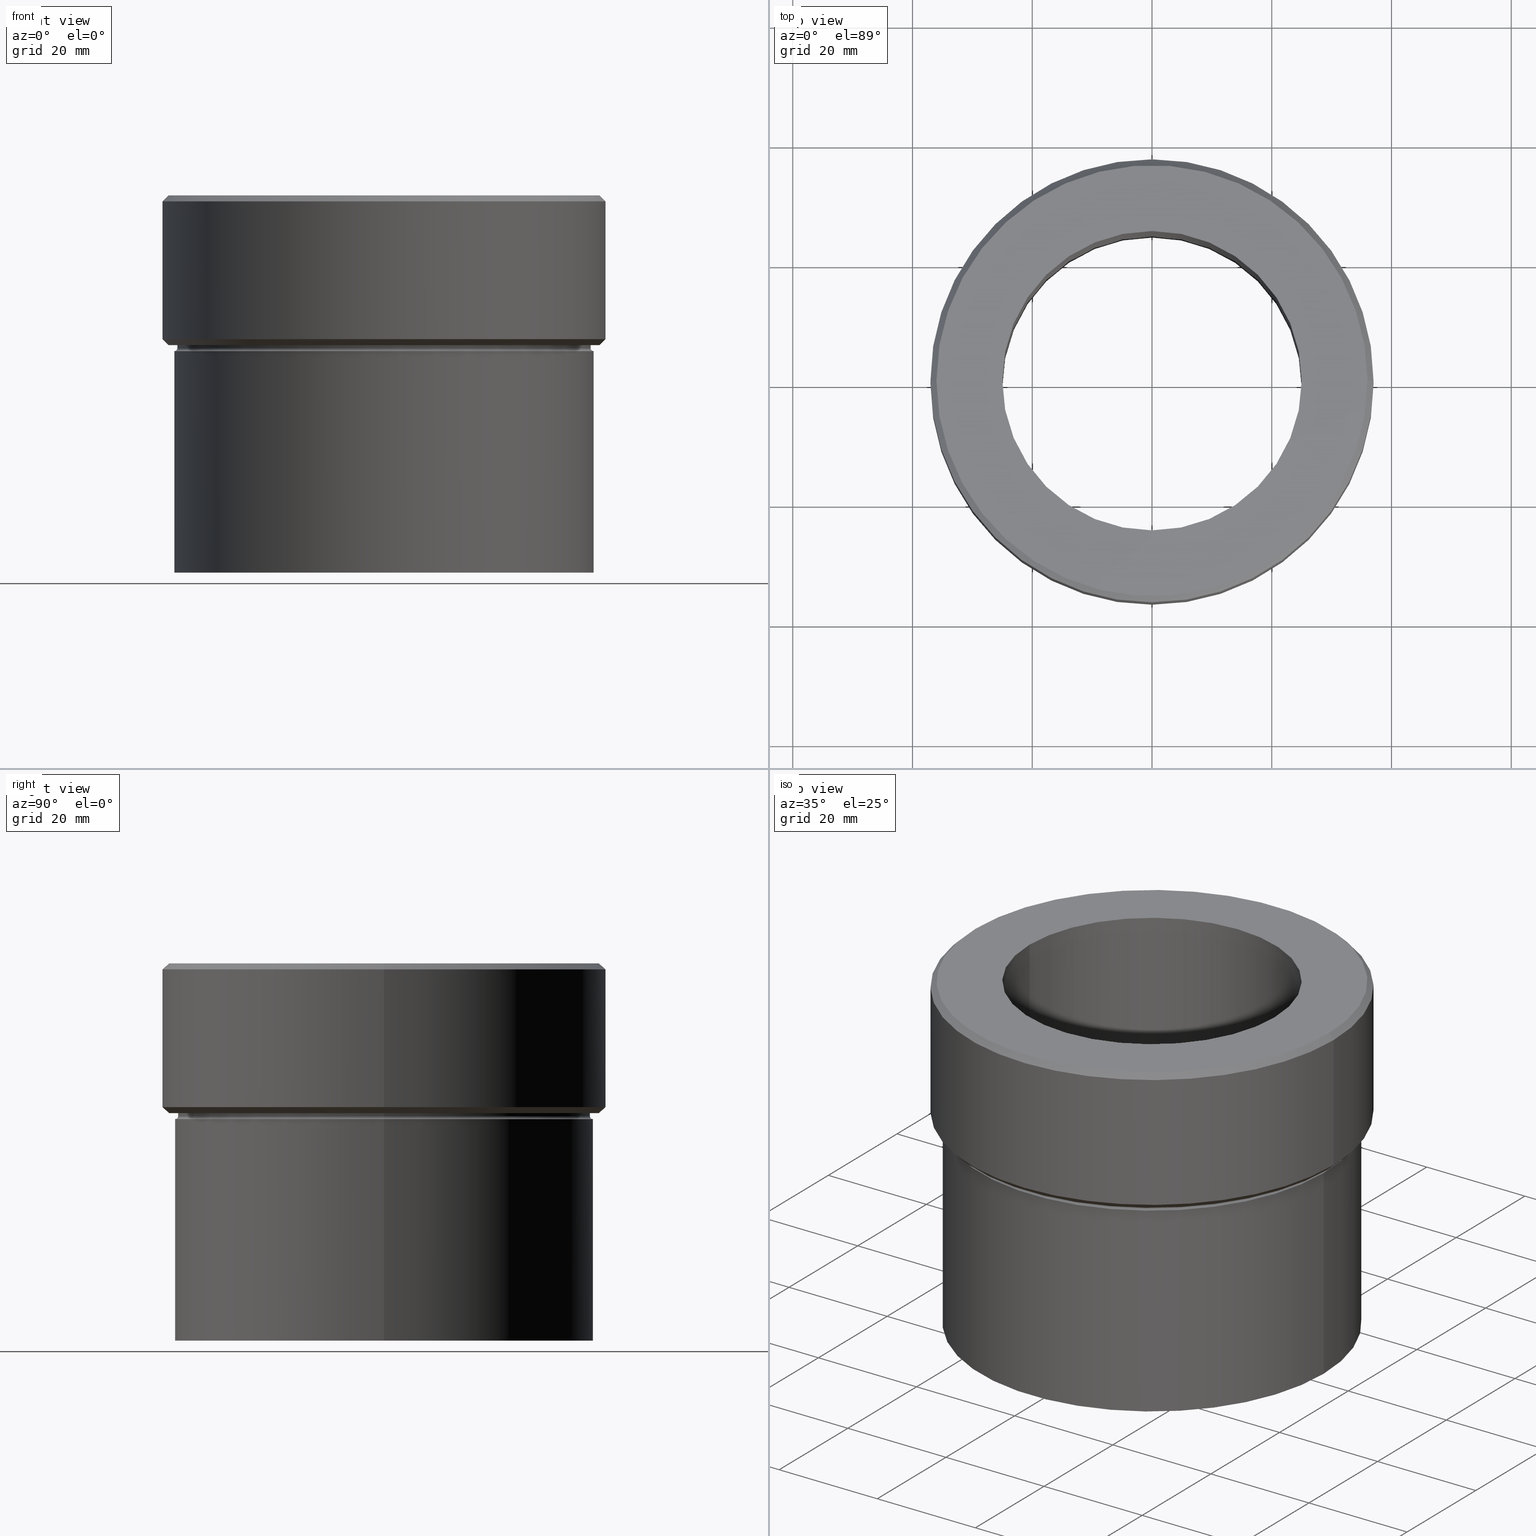
[diagram: canonical four-view strip — front | top / right | iso, engineering-drawing reading convention]
A machine part, canonical four-view strip (front | top / right | iso — engineering-drawing reading convention). The complete STEP part file that produces these views, byte-faithful:
ISO-10303-21;
HEADER;
FILE_DESCRIPTION (( 'STEP AP203' ),
    '1' );
FILE_NAME ('b271.STEP',
    '2024-01-08T12:24:02',
    ( '' ),
    ( '' ),
    'SwSTEP 2.0',
    'SolidWorks 2019',
    '' );
FILE_SCHEMA (( 'CONFIG_CONTROL_DESIGN' ));
ENDSEC;

DATA;
#1 = FACE_OUTER_BOUND ( 'NONE', #233, .T. ) ;
#2 = TOROIDAL_SURFACE ( 'NONE', #307, 35.00000000000000000, 0.5000000000000000000 ) ;
#3 = LOCAL_TIME ( 13, 24, 2.000000000000000000, #10 ) ;
#4 = APPLICATION_PROTOCOL_DEFINITION ( 'international standard', 'config_control_design', 1994, #473 ) ;
#5 = DIRECTION ( 'NONE',  ( -0.000000000000000000, -0.000000000000000000, 1.000000000000000000 ) ) ;
#6 = CARTESIAN_POINT ( 'NONE',  ( 0.000000000000000000, 0.000000000000000000, 0.000000000000000000 ) ) ;
#7 = EDGE_CURVE ( 'NONE', #230, #194, #29, .T. ) ;
#8 = FACE_OUTER_BOUND ( 'NONE', #352, .T. ) ;
#9 = DIRECTION ( 'NONE',  ( 1.000000000000000000, 0.000000000000000000, 0.000000000000000000 ) ) ;
#10 = COORDINATED_UNIVERSAL_TIME_OFFSET ( 1, 0, .AHEAD. ) ;
#11 = AXIS2_PLACEMENT_3D ( 'NONE', #298, #90, #24 ) ;
#12 = VERTEX_POINT ( 'NONE', #430 ) ;
#13 = CARTESIAN_POINT ( 'NONE',  ( 0.000000000000000000, 0.000000000000000000, -25.00000000000000000 ) ) ;
#14 = ORIENTED_EDGE ( 'NONE', *, *, #84, .F. ) ;
#15 = ADVANCED_FACE ( 'NONE', ( #345 ), #253, .T. ) ;
#16 = ORIENTED_EDGE ( 'NONE', *, *, #117, .T. ) ;
#17 = ORIENTED_EDGE ( 'NONE', *, *, #414, .T. ) ;
#18 = DIRECTION ( 'NONE',  ( 0.7071067811865500152, 0.000000000000000000, 0.7071067811865451302 ) ) ;
#19 = AXIS2_PLACEMENT_3D ( 'NONE', #485, #186, #188 ) ;
#20 = CARTESIAN_POINT ( 'NONE',  ( 34.50000000000000000, 0.000000000000000000, -25.00000000000000000 ) ) ;
#21 = VERTEX_POINT ( 'NONE', #20 ) ;
#22 = CARTESIAN_POINT ( 'NONE',  ( -35.99999999999996447, 4.469960816887836852E-15, -25.00000000000000000 ) ) ;
#23 = PERSON_AND_ORGANIZATION ( #122, #266 ) ;
#24 = DIRECTION ( 'NONE',  ( 1.000000000000000000, 0.000000000000000000, 0.000000000000000000 ) ) ;
#25 = LINE ( 'NONE', #344, #149 ) ;
#26 = CC_DESIGN_PERSON_AND_ORGANIZATION_ASSIGNMENT ( #23, #511, ( #40 ) ) ;
#27 = DIRECTION ( 'NONE',  ( 1.000000000000000000, 0.000000000000000000, 0.000000000000000000 ) ) ;
#28 = ORIENTED_EDGE ( 'NONE', *, *, #318, .T. ) ;
#29 = CIRCLE ( 'NONE', #328, 25.00000000000000000 ) ;
#30 = AXIS2_PLACEMENT_3D ( 'NONE', #474, #237, #200 ) ;
#31 = ORIENTED_EDGE ( 'NONE', *, *, #261, .F. ) ;
#32 = ADVANCED_FACE ( 'NONE', ( #60, #303 ), #179, .T. ) ;
#33 = CARTESIAN_POINT ( 'NONE',  ( -37.00000000000000000, 4.531193156845206793E-15, -0.9999999999999870104 ) ) ;
#34 = ORIENTED_EDGE ( 'NONE', *, *, #398, .F. ) ;
#35 = COORDINATED_UNIVERSAL_TIME_OFFSET ( 1, 0, .AHEAD. ) ;
#36 = ORIENTED_EDGE ( 'NONE', *, *, #455, .F. ) ;
#37 = CARTESIAN_POINT ( 'NONE',  ( 35.00000000000000000, 0.000000000000000000, -26.00000000000000000 ) ) ;
#38 = AXIS2_PLACEMENT_3D ( 'NONE', #58, #355, #276 ) ;
#39 = ORIENTED_EDGE ( 'NONE', *, *, #195, .T. ) ;
#40 = PRODUCT_DEFINITION_FORMATION_WITH_SPECIFIED_SOURCE ( 'LIBOVOLN�', '', #202, .NOT_KNOWN. ) ;
#41 = DIRECTION ( 'NONE',  ( -0.000000000000000000, -0.000000000000000000, 1.000000000000000000 ) ) ;
#42 = CC_DESIGN_DATE_AND_TIME_ASSIGNMENT ( #316, #521, ( #178 ) ) ;
#43 = ORIENTED_EDGE ( 'NONE', *, *, #56, .T. ) ;
#44 = CYLINDRICAL_SURFACE ( 'NONE', #347, 37.00000000000000000 ) ;
#45 = VERTEX_POINT ( 'NONE', #502 ) ;
#46 = DIRECTION ( 'NONE',  ( 1.000000000000000000, 0.000000000000000000, 0.000000000000000000 ) ) ;
#47 = CONICAL_SURFACE ( 'NONE', #287, 36.00000000000002132, 0.7853981633974447263 ) ;
#48 = CARTESIAN_POINT ( 'NONE',  ( 0.000000000000000000, 0.000000000000000000, 0.000000000000000000 ) ) ;
#49 = AXIS2_PLACEMENT_3D ( 'NONE', #59, #255, #219 ) ;
#50 = ADVANCED_FACE ( 'NONE', ( #134 ), #139, .T. ) ;
#51 = LINE ( 'NONE', #221, #160 ) ;
#52 = DIRECTION ( 'NONE',  ( -0.000000000000000000, -0.000000000000000000, 1.000000000000000000 ) ) ;
#53 = DIRECTION ( 'NONE',  ( 1.000000000000000000, 0.000000000000000000, 0.000000000000000000 ) ) ;
#54 = DIRECTION ( 'NONE',  ( 1.000000000000000000, 0.000000000000000000, 0.000000000000000000 ) ) ;
#55 = CIRCLE ( 'NONE', #159, 34.50000000000000000 ) ;
#56 = EDGE_CURVE ( 'NONE', #257, #45, #304, .T. ) ;
#57 = LOCAL_TIME ( 13, 24, 2.000000000000000000, #438 ) ;
#58 = CARTESIAN_POINT ( 'NONE',  ( 0.000000000000000000, 0.000000000000000000, 0.000000000000000000 ) ) ;
#59 = CARTESIAN_POINT ( 'NONE',  ( 0.000000000000000000, 0.000000000000000000, -25.00000000000000000 ) ) ;
#60 = FACE_BOUND ( 'NONE', #499, .T. ) ;
#61 = CARTESIAN_POINT ( 'NONE',  ( 37.00000000000000000, 0.000000000000000000, -23.99999999999997158 ) ) ;
#62 = DIRECTION ( 'NONE',  ( 1.000000000000000000, 0.000000000000000000, 0.000000000000000000 ) ) ;
#63 = VECTOR ( 'NONE', #41, 1000.000000000000000 ) ;
#64 = EDGE_CURVE ( 'NONE', #145, #366, #55, .T. ) ;
#65 = ORIENTED_EDGE ( 'NONE', *, *, #261, .T. ) ;
#66 = CARTESIAN_POINT ( 'NONE',  ( 0.000000000000000000, 37.00000000000000000, -25.00000000000000000 ) ) ;
#67 = VERTEX_POINT ( 'NONE', #22 ) ;
#68 = EDGE_CURVE ( 'NONE', #366, #386, #282, .T. ) ;
#69 = AXIS2_PLACEMENT_3D ( 'NONE', #513, #146, #322 ) ;
#70 = AXIS2_PLACEMENT_3D ( 'NONE', #309, #174, #343 ) ;
#71 = ORIENTED_EDGE ( 'NONE', *, *, #243, .T. ) ;
#72 = DIRECTION ( 'NONE',  ( -1.000000000000000000, 0.000000000000000000, 0.000000000000000000 ) ) ;
#73 = EDGE_LOOP ( 'NONE', ( #378, #262, #190, #93 ) ) ;
#74 = DIRECTION ( 'NONE',  ( -0.000000000000000000, -0.000000000000000000, 1.000000000000000000 ) ) ;
#75 = ORIENTED_EDGE ( 'NONE', *, *, #507, .T. ) ;
#76 = ORIENTED_EDGE ( 'NONE', *, *, #143, .T. ) ;
#77 = DIRECTION ( 'NONE',  ( 1.000000000000000000, 0.000000000000000000, 0.000000000000000000 ) ) ;
#78 = PERSON_AND_ORGANIZATION ( #122, #266 ) ;
#79 = VECTOR ( 'NONE', #150, 1000.000000000000000 ) ;
#80 = VERTEX_POINT ( 'NONE', #409 ) ;
#81 = EDGE_CURVE ( 'NONE', #366, #393, #170, .T. ) ;
#82 = FACE_OUTER_BOUND ( 'NONE', #156, .T. ) ;
#83 = DIRECTION ( 'NONE',  ( -0.000000000000000000, -0.000000000000000000, 1.000000000000000000 ) ) ;
#84 = EDGE_CURVE ( 'NONE', #357, #12, #128, .T. ) ;
#85 = DIRECTION ( 'NONE',  ( 1.000000000000000000, 0.000000000000000000, 0.000000000000000000 ) ) ;
#86 = CARTESIAN_POINT ( 'NONE',  ( -36.00000000000002132, 0.000000000000000000, 0.000000000000000000 ) ) ;
#87 = PERSON_AND_ORGANIZATION ( #122, #266 ) ;
#88 = CARTESIAN_POINT ( 'NONE',  ( 0.000000000000000000, 0.000000000000000000, 0.000000000000000000 ) ) ;
#89 = PERSON_AND_ORGANIZATION_ROLE ( 'creator' ) ;
#90 = DIRECTION ( 'NONE',  ( -0.000000000000000000, -0.000000000000000000, 1.000000000000000000 ) ) ;
#91 = DIRECTION ( 'NONE',  ( -0.000000000000000000, -0.000000000000000000, 1.000000000000000000 ) ) ;
#92 = ADVANCED_FACE ( 'NONE', ( #271 ), #176, .T. ) ;
#93 = ORIENTED_EDGE ( 'NONE', *, *, #284, .F. ) ;
#94 = AXIS2_PLACEMENT_3D ( 'NONE', #220, #338, #185 ) ;
#95 = AXIS2_PLACEMENT_3D ( 'NONE', #48, #291, #208 ) ;
#96 = CC_DESIGN_APPROVAL ( #164, ( #40 ) ) ;
#97 = CARTESIAN_POINT ( 'NONE',  ( 37.00000000000000000, 0.000000000000000000, -23.99999999999997158 ) ) ;
#98 = CALENDAR_DATE ( 2024, 8, 1 ) ;
#99 = ORIENTED_EDGE ( 'NONE', *, *, #277, .F. ) ;
#100 = EDGE_CURVE ( 'NONE', #402, #236, #372, .T. ) ;
#101 = APPLICATION_CONTEXT ( 'configuration controlled 3d designs of mechanical parts and assemblies' ) ;
#102 = ORIENTED_EDGE ( 'NONE', *, *, #84, .T. ) ;
#103 = AXIS2_PLACEMENT_3D ( 'NONE', #148, #444, #319 ) ;
#104 = PERSON_AND_ORGANIZATION_ROLE ( 'design_supplier' ) ;
#105 = CARTESIAN_POINT ( 'NONE',  ( 0.000000000000000000, 0.000000000000000000, -63.00000000000000000 ) ) ;
#106 = ORIENTED_EDGE ( 'NONE', *, *, #183, .T. ) ;
#107 = EDGE_CURVE ( 'NONE', #136, #393, #314, .T. ) ;
#108 = ORIENTED_EDGE ( 'NONE', *, *, #143, .F. ) ;
#109 = AXIS2_PLACEMENT_3D ( 'NONE', #119, #405, #391 ) ;
#110 = ORIENTED_EDGE ( 'NONE', *, *, #195, .F. ) ;
#111 = ORIENTED_EDGE ( 'NONE', *, *, #500, .F. ) ;
#112 =( NAMED_UNIT ( * ) SI_UNIT ( $, .STERADIAN. ) SOLID_ANGLE_UNIT ( ) );
#113 = ORIENTED_EDGE ( 'NONE', *, *, #189, .F. ) ;
#114 = PLANE ( 'NONE',  #260 ) ;
#115 = CARTESIAN_POINT ( 'NONE',  ( -34.50000000000000000, 4.225031457058368922E-15, -25.00000000000000000 ) ) ;
#116 = MECHANICAL_CONTEXT ( 'NONE', #473, 'mechanical' ) ;
#117 = EDGE_CURVE ( 'NONE', #21, #386, #481, .T. ) ;
#118 = EDGE_LOOP ( 'NONE', ( #120, #65, #529, #111 ) ) ;
#119 = CARTESIAN_POINT ( 'NONE',  ( 0.000000000000000000, 0.000000000000000000, -26.00000000000000000 ) ) ;
#120 = ORIENTED_EDGE ( 'NONE', *, *, #100, .T. ) ;
#121 = AXIS2_PLACEMENT_3D ( 'NONE', #448, #203, #77 ) ;
#122 = PERSON ( 'NEUR�EN�', 'NEUR�EN�', 'NEUR�EN�', ('NEUR�EN�'), ('NEUR�EN�'), ('NEUR�EN�') ) ;
#123 = DIRECTION ( 'NONE',  ( -1.000000000000000000, 0.000000000000000000, 0.000000000000000000 ) ) ;
#124 = CYLINDRICAL_SURFACE ( 'NONE', #497, 25.00000000000000000 ) ;
#125 = EDGE_CURVE ( 'NONE', #439, #12, #196, .T. ) ;
#126 = EDGE_LOOP ( 'NONE', ( #31, #76, #193, #390 ) ) ;
#127 = FACE_OUTER_BOUND ( 'NONE', #126, .T. ) ;
#128 = CIRCLE ( 'NONE', #19, 37.00000000000000000 ) ;
#129 = DIRECTION ( 'NONE',  ( -1.000000000000000000, 0.000000000000000000, 0.000000000000000000 ) ) ;
#130 = VECTOR ( 'NONE', #258, 1000.000000000000000 ) ;
#131 = DESIGN_CONTEXT ( 'detailed design', #101, 'design' ) ;
#132 = ADVANCED_FACE ( 'NONE', ( #82, #370 ), #114, .T. ) ;
#133 = DIRECTION ( 'NONE',  ( -0.000000000000000000, -0.000000000000000000, 1.000000000000000000 ) ) ;
#134 = FACE_OUTER_BOUND ( 'NONE', #264, .T. ) ;
#135 = CARTESIAN_POINT ( 'NONE',  ( 36.00000000000002132, 4.408728476930474011E-15, 0.000000000000000000 ) ) ;
#136 = VERTEX_POINT ( 'NONE', #37 ) ;
#137 = DIRECTION ( 'NONE',  ( 0.000000000000000000, 0.000000000000000000, -1.000000000000000000 ) ) ;
#139 = CONICAL_SURFACE ( 'NONE', #306, 36.00000000000002132, 0.7853981633974447263 ) ;
#138 = DIRECTION ( 'NONE',  ( -0.000000000000000000, -0.000000000000000000, 1.000000000000000000 ) ) ;
#140 = VECTOR ( 'NONE', #91, 1000.000000000000000 ) ;
#141 = CC_DESIGN_APPROVAL ( #483, ( #431 ) ) ;
#142 = DIRECTION ( 'NONE',  ( -0.7071067811865451302, 0.000000000000000000, -0.7071067811865500152 ) ) ;
#143 = EDGE_CURVE ( 'NONE', #236, #402, #354, .T. ) ;
#144 = CARTESIAN_POINT ( 'NONE',  ( 0.000000000000000000, 0.000000000000000000, 0.000000000000000000 ) ) ;
#145 = VERTEX_POINT ( 'NONE', #524 ) ;
#146 = DIRECTION ( 'NONE',  ( -0.000000000000000000, -0.000000000000000000, 1.000000000000000000 ) ) ;
#147 = ORIENTED_EDGE ( 'NONE', *, *, #446, .T. ) ;
#148 = CARTESIAN_POINT ( 'NONE',  ( 0.000000000000000000, 0.000000000000000000, -25.00000000000000000 ) ) ;
#149 = VECTOR ( 'NONE', #506, 1000.000000000000114 ) ;
#150 = DIRECTION ( 'NONE',  ( -0.000000000000000000, -0.000000000000000000, 1.000000000000000000 ) ) ;
#151 = VECTOR ( 'NONE', #142, 1000.000000000000114 ) ;
#152 = ADVANCED_FACE ( 'NONE', ( #325 ), #44, .T. ) ;
#153 = EDGE_LOOP ( 'NONE', ( #280, #324, #217, #509 ) ) ;
#154 = ORIENTED_EDGE ( 'NONE', *, *, #204, .T. ) ;
#155 = ORIENTED_EDGE ( 'NONE', *, *, #125, .T. ) ;
#156 = EDGE_LOOP ( 'NONE', ( #28, #226 ) ) ;
#157 = ORIENTED_EDGE ( 'NONE', *, *, #68, .T. ) ;
#158 = PERSON_AND_ORGANIZATION ( #122, #266 ) ;
#159 = AXIS2_PLACEMENT_3D ( 'NONE', #452, #413, #228 ) ;
#160 = VECTOR ( 'NONE', #379, 1000.000000000000000 ) ;
#161 = EDGE_LOOP ( 'NONE', ( #281, #106, #43, #113 ) ) ;
#162 = FACE_OUTER_BOUND ( 'NONE', #369, .T. ) ;
#163 = DIRECTION ( 'NONE',  ( -1.000000000000000000, 0.000000000000000000, -0.000000000000000000 ) ) ;
#164 = APPROVAL ( #297, 'NEUR�EN�' ) ;
#165 = ORIENTED_EDGE ( 'NONE', *, *, #81, .F. ) ;
#166 = LINE ( 'NONE', #488, #140 ) ;
#167 = APPROVAL_DATE_TIME ( #528, #483 ) ;
#168 = DIRECTION ( 'NONE',  ( 1.000000000000000000, 0.000000000000000000, 0.000000000000000000 ) ) ;
#169 =( LENGTH_UNIT ( ) NAMED_UNIT ( * ) SI_UNIT ( .MILLI., .METRE. ) );
#170 = CIRCLE ( 'NONE', #30, 0.5000000000000004441 ) ;
#171 = ADVANCED_FACE ( 'NONE', ( #162 ), #364, .F. ) ;
#172 = VECTOR ( 'NONE', #211, 1000.000000000000114 ) ;
#173 = FACE_OUTER_BOUND ( 'NONE', #153, .T. ) ;
#174 = DIRECTION ( 'NONE',  ( 0.000000000000000000, 0.000000000000000000, -1.000000000000000000 ) ) ;
#175 = DIRECTION ( 'NONE',  ( -0.000000000000000000, -0.000000000000000000, 1.000000000000000000 ) ) ;
#176 = CONICAL_SURFACE ( 'NONE', #522, 37.00000000000000000, 0.7853981633974517207 ) ;
#177 = CARTESIAN_POINT ( 'NONE',  ( 0.000000000000000000, 0.000000000000000000, 0.000000000000000000 ) ) ;
#178 = SECURITY_CLASSIFICATION ( '', '', #268 ) ;
#179 = PLANE ( 'NONE',  #94 ) ;
#180 = CC_DESIGN_PERSON_AND_ORGANIZATION_ASSIGNMENT ( #395, #272, ( #178 ) ) ;
#181 = CARTESIAN_POINT ( 'NONE',  ( 0.000000000000000000, 0.000000000000000000, -63.00000000000000000 ) ) ;
#182 = LINE ( 'NONE', #346, #151 ) ;
#183 = EDGE_CURVE ( 'NONE', #194, #257, #239, .T. ) ;
#184 = AXIS2_PLACEMENT_3D ( 'NONE', #310, #486, #163 ) ;
#185 = DIRECTION ( 'NONE',  ( 1.000000000000000000, 0.000000000000000000, 0.000000000000000000 ) ) ;
#186 = DIRECTION ( 'NONE',  ( 0.000000000000000000, 0.000000000000000000, -1.000000000000000000 ) ) ;
#187 = EDGE_LOOP ( 'NONE', ( #154, #342 ) ) ;
#188 = DIRECTION ( 'NONE',  ( 1.000000000000000000, 0.000000000000000000, 0.000000000000000000 ) ) ;
#189 = EDGE_CURVE ( 'NONE', #230, #45, #166, .T. ) ;
#190 = ORIENTED_EDGE ( 'NONE', *, *, #489, .T. ) ;
#191 = ORIENTED_EDGE ( 'NONE', *, *, #312, .F. ) ;
#192 = FACE_OUTER_BOUND ( 'NONE', #73, .T. ) ;
#193 = ORIENTED_EDGE ( 'NONE', *, *, #500, .T. ) ;
#194 = VERTEX_POINT ( 'NONE', #423 ) ;
#195 = EDGE_CURVE ( 'NONE', #80, #439, #424, .T. ) ;
#196 = LINE ( 'NONE', #289, #63 ) ;
#197 = DIRECTION ( 'NONE',  ( -0.000000000000000000, -0.000000000000000000, 1.000000000000000000 ) ) ;
#198 = CIRCLE ( 'NONE', #468, 36.00000000000002132 ) ;
#199 = VERTEX_POINT ( 'NONE', #86 ) ;
#200 = DIRECTION ( 'NONE',  ( -1.000000000000000000, 1.224646799147349509E-16, 0.000000000000000000 ) ) ;
#201 = ORIENTED_EDGE ( 'NONE', *, *, #477, .F. ) ;
#202 = PRODUCT ( 'b271', 'b271', '', ( #116 ) ) ;
#203 = DIRECTION ( 'NONE',  ( -0.000000000000000000, -0.000000000000000000, 1.000000000000000000 ) ) ;
#204 = EDGE_CURVE ( 'NONE', #199, #278, #198, .T. ) ;
#205 = CYLINDRICAL_SURFACE ( 'NONE', #387, 35.00000000000000000 ) ;
#206 = AXIS2_PLACEMENT_3D ( 'NONE', #177, #52, #212 ) ;
#207 = APPROVAL_PERSON_ORGANIZATION ( #158, #527, #209 ) ;
#208 = DIRECTION ( 'NONE',  ( 1.000000000000000000, 0.000000000000000000, 0.000000000000000000 ) ) ;
#209 = APPROVAL_ROLE ( '' ) ;
#210 = CARTESIAN_POINT ( 'NONE',  ( 0.000000000000000000, 0.000000000000000000, -80.00000000000000000 ) ) ;
#211 = DIRECTION ( 'NONE',  ( 0.7071067811865451302, 8.659560562354904508E-17, -0.7071067811865500152 ) ) ;
#212 = DIRECTION ( 'NONE',  ( 1.000000000000000000, 0.000000000000000000, 0.000000000000000000 ) ) ;
#213 = CC_DESIGN_PERSON_AND_ORGANIZATION_ASSIGNMENT ( #283, #450, ( #202 ) ) ;
#214 = CIRCLE ( 'NONE', #38, 36.00000000000002132 ) ;
#215 = FACE_OUTER_BOUND ( 'NONE', #161, .T. ) ;
#216 = CIRCLE ( 'NONE', #514, 0.5000000000000004441 ) ;
#217 = ORIENTED_EDGE ( 'NONE', *, *, #389, .T. ) ;
#218 = ADVANCED_FACE ( 'NONE', ( #215 ), #244, .F. ) ;
#219 = DIRECTION ( 'NONE',  ( 1.000000000000000000, 0.000000000000000000, 0.000000000000000000 ) ) ;
#220 = CARTESIAN_POINT ( 'NONE',  ( 0.000000000000000000, 0.000000000000000000, 0.000000000000000000 ) ) ;
#221 = CARTESIAN_POINT ( 'NONE',  ( 35.00000000000000000, 0.000000000000000000, 0.000000000000000000 ) ) ;
#222 = ORIENTED_EDGE ( 'NONE', *, *, #302, .F. ) ;
#223 = CIRCLE ( 'NONE', #410, 34.50000000000000000 ) ;
#224 = VECTOR ( 'NONE', #18, 1000.000000000000114 ) ;
#225 = APPROVAL_DATE_TIME ( #348, #164 ) ;
#226 = ORIENTED_EDGE ( 'NONE', *, *, #398, .T. ) ;
#227 = ADVANCED_FACE ( 'NONE', ( #127 ), #205, .T. ) ;
#228 = DIRECTION ( 'NONE',  ( 1.000000000000000000, 0.000000000000000000, 0.000000000000000000 ) ) ;
#229 = CYLINDRICAL_SURFACE ( 'NONE', #400, 37.00000000000000000 ) ;
#230 = VERTEX_POINT ( 'NONE', #371 ) ;
#231 = CIRCLE ( 'NONE', #476, 37.00000000000000000 ) ;
#232 =( GEOMETRIC_REPRESENTATION_CONTEXT ( 3 ) GLOBAL_UNCERTAINTY_ASSIGNED_CONTEXT ( ( #418 ) ) GLOBAL_UNIT_ASSIGNED_CONTEXT ( ( #169, #330, #112 ) ) REPRESENTATION_CONTEXT ( 'NONE', 'WORKASPACE' ) );
#233 = EDGE_LOOP ( 'NONE', ( #317, #519, #466, #296 ) ) ;
#234 = FACE_OUTER_BOUND ( 'NONE', #504, .T. ) ;
#235 = ADVANCED_FACE ( 'NONE', ( #1 ), #124, .F. ) ;
#236 = VERTEX_POINT ( 'NONE', #456 ) ;
#237 = DIRECTION ( 'NONE',  ( 1.224646799147353207E-16, 1.000000000000000000, 0.000000000000000000 ) ) ;
#238 = ORIENTED_EDGE ( 'NONE', *, *, #125, .F. ) ;
#239 = LINE ( 'NONE', #367, #79 ) ;
#240 = VECTOR ( 'NONE', #394, 1000.000000000000000 ) ;
#241 = EDGE_LOOP ( 'NONE', ( #71, #273, #102, #238 ) ) ;
#242 = CARTESIAN_POINT ( 'NONE',  ( 0.000000000000000000, 0.000000000000000000, 0.000000000000000000 ) ) ;
#243 = EDGE_CURVE ( 'NONE', #439, #80, #441, .T. ) ;
#244 = CYLINDRICAL_SURFACE ( 'NONE', #329, 25.00000000000000000 ) ;
#245 = DIRECTION ( 'NONE',  ( -1.000000000000000000, 0.000000000000000000, 0.000000000000000000 ) ) ;
#246 = DATE_AND_TIME ( #300, #3 ) ;
#247 = AXIS2_PLACEMENT_3D ( 'NONE', #105, #74, #168 ) ;
#248 = CC_DESIGN_APPROVAL ( #527, ( #178 ) ) ;
#249 = FACE_OUTER_BOUND ( 'NONE', #396, .T. ) ;
#250 = LINE ( 'NONE', #135, #172 ) ;
#251 = ADVANCED_FACE ( 'NONE', ( #173 ), #415, .T. ) ;
#252 = CARTESIAN_POINT ( 'NONE',  ( 0.000000000000000000, 0.000000000000000000, -23.99999999999997158 ) ) ;
#253 = CYLINDRICAL_SURFACE ( 'NONE', #467, 35.00000000000000000 ) ;
#254 = CALENDAR_DATE ( 2024, 8, 1 ) ;
#255 = DIRECTION ( 'NONE',  ( -0.000000000000000000, -0.000000000000000000, 1.000000000000000000 ) ) ;
#256 = SHAPE_DEFINITION_REPRESENTATION ( #490, #420 ) ;
#257 = VERTEX_POINT ( 'NONE', #376 ) ;
#258 = DIRECTION ( 'NONE',  ( -0.000000000000000000, -0.000000000000000000, 1.000000000000000000 ) ) ;
#259 = CLOSED_SHELL ( 'NONE', ( #218, #171, #50, #520, #15, #269, #368, #32, #152, #132, #251, #227, #380, #92, #356, #375, #235 ) ) ;
#260 = AXIS2_PLACEMENT_3D ( 'NONE', #66, #267, #530 ) ;
#261 = EDGE_CURVE ( 'NONE', #236, #393, #494, .T. ) ;
#262 = ORIENTED_EDGE ( 'NONE', *, *, #204, .F. ) ;
#263 = EDGE_LOOP ( 'NONE', ( #525, #428, #285, #110 ) ) ;
#264 = EDGE_LOOP ( 'NONE', ( #191, #147, #14, #275 ) ) ;
#265 = VECTOR ( 'NONE', #458, 1000.000000000000000 ) ;
#266 = ORGANIZATION ( 'NEUR�EN�', 'NEUR�EN�', '' ) ;
#267 = DIRECTION ( 'NONE',  ( 0.000000000000000000, 0.000000000000000000, -1.000000000000000000 ) ) ;
#268 = SECURITY_CLASSIFICATION_LEVEL ( 'unclassified' ) ;
#269 = ADVANCED_FACE ( 'NONE', ( #249 ), #377, .T. ) ;
#270 = CARTESIAN_POINT ( 'NONE',  ( -34.50000000000000000, 4.225031457058368922E-15, -25.50000000000000000 ) ) ;
#271 = FACE_OUTER_BOUND ( 'NONE', #263, .T. ) ;
#272 = PERSON_AND_ORGANIZATION_ROLE ( 'classification_officer' ) ;
#273 = ORIENTED_EDGE ( 'NONE', *, *, #408, .T. ) ;
#274 = PLANE ( 'NONE',  #184 ) ;
#275 = ORIENTED_EDGE ( 'NONE', *, *, #489, .F. ) ;
#276 = DIRECTION ( 'NONE',  ( 1.000000000000000000, 0.000000000000000000, 0.000000000000000000 ) ) ;
#277 = EDGE_CURVE ( 'NONE', #45, #257, #416, .T. ) ;
#278 = VERTEX_POINT ( 'NONE', #335 ) ;
#279 = FACE_OUTER_BOUND ( 'NONE', #447, .T. ) ;
#280 = ORIENTED_EDGE ( 'NONE', *, *, #68, .F. ) ;
#281 = ORIENTED_EDGE ( 'NONE', *, *, #7, .T. ) ;
#282 = LINE ( 'NONE', #311, #240 ) ;
#283 = PERSON_AND_ORGANIZATION ( #122, #266 ) ;
#284 = EDGE_CURVE ( 'NONE', #12, #357, #231, .T. ) ;
#285 = ORIENTED_EDGE ( 'NONE', *, *, #477, .T. ) ;
#286 = DIRECTION ( 'NONE',  ( 1.000000000000000000, 0.000000000000000000, 0.000000000000000000 ) ) ;
#287 = AXIS2_PLACEMENT_3D ( 'NONE', #516, #518, #72 ) ;
#288 = LOCAL_TIME ( 13, 24, 2.000000000000000000, #35 ) ;
#289 = CARTESIAN_POINT ( 'NONE',  ( 37.00000000000000000, 0.000000000000000000, 0.000000000000000000 ) ) ;
#290 = DIRECTION ( 'NONE',  ( 1.000000000000000000, 0.000000000000000000, 0.000000000000000000 ) ) ;
#291 = DIRECTION ( 'NONE',  ( -0.000000000000000000, -0.000000000000000000, 1.000000000000000000 ) ) ;
#292 = EDGE_CURVE ( 'NONE', #67, #80, #25, .T. ) ;
#293 = DATE_AND_TIME ( #254, #498 ) ;
#294 = DIRECTION ( 'NONE',  ( 1.000000000000000000, 0.000000000000000000, 0.000000000000000000 ) ) ;
#295 = DIRECTION ( 'NONE',  ( -0.000000000000000000, -0.000000000000000000, 1.000000000000000000 ) ) ;
#296 = ORIENTED_EDGE ( 'NONE', *, *, #277, .T. ) ;
#297 = APPROVAL_STATUS ( 'not_yet_approved' ) ;
#298 = CARTESIAN_POINT ( 'NONE',  ( 0.000000000000000000, 0.000000000000000000, -23.99999999999997158 ) ) ;
#299 = DIRECTION ( 'NONE',  ( -0.000000000000000000, -0.000000000000000000, 1.000000000000000000 ) ) ;
#300 = CALENDAR_DATE ( 2024, 8, 1 ) ;
#301 = CARTESIAN_POINT ( 'NONE',  ( 0.000000000000000000, 0.000000000000000000, 0.000000000000000000 ) ) ;
#302 = EDGE_CURVE ( 'NONE', #366, #145, #223, .T. ) ;
#303 = FACE_OUTER_BOUND ( 'NONE', #187, .T. ) ;
#304 = CIRCLE ( 'NONE', #69, 25.00000000000000000 ) ;
#305 = LINE ( 'NONE', #97, #224 ) ;
#306 = AXIS2_PLACEMENT_3D ( 'NONE', #301, #434, #123 ) ;
#307 = AXIS2_PLACEMENT_3D ( 'NONE', #440, #403, #359 ) ;
#308 = AXIS2_PLACEMENT_3D ( 'NONE', #13, #384, #340 ) ;
#309 = CARTESIAN_POINT ( 'NONE',  ( 0.000000000000000000, 0.000000000000000000, -63.00000000000000000 ) ) ;
#310 = CARTESIAN_POINT ( 'NONE',  ( 0.000000000000000000, 35.00000000000000000, -63.00000000000000000 ) ) ;
#311 = CARTESIAN_POINT ( 'NONE',  ( -34.50000000000000000, 4.225031457058368922E-15, 0.000000000000000000 ) ) ;
#312 = EDGE_CURVE ( 'NONE', #278, #199, #214, .T. ) ;
#313 = DIRECTION ( 'NONE',  ( 0.000000000000000000, 0.000000000000000000, -1.000000000000000000 ) ) ;
#314 = CIRCLE ( 'NONE', #109, 35.00000000000000000 ) ;
#315 = DIRECTION ( 'NONE',  ( 1.000000000000000000, 0.000000000000000000, 0.000000000000000000 ) ) ;
#316 = DATE_AND_TIME ( #517, #57 ) ;
#317 = ORIENTED_EDGE ( 'NONE', *, *, #183, .F. ) ;
#318 = EDGE_CURVE ( 'NONE', #479, #67, #508, .T. ) ;
#319 = DIRECTION ( 'NONE',  ( -1.000000000000000000, 0.000000000000000000, 0.000000000000000000 ) ) ;
#320 = FACE_BOUND ( 'NONE', #404, .T. ) ;
#321 = ORIENTED_EDGE ( 'NONE', *, *, #107, .T. ) ;
#322 = DIRECTION ( 'NONE',  ( 1.000000000000000000, 0.000000000000000000, 0.000000000000000000 ) ) ;
#323 = CARTESIAN_POINT ( 'NONE',  ( 0.000000000000000000, 0.000000000000000000, 0.000000000000000000 ) ) ;
#324 = ORIENTED_EDGE ( 'NONE', *, *, #302, .T. ) ;
#325 = FACE_OUTER_BOUND ( 'NONE', #451, .T. ) ;
#326 = PERSON_AND_ORGANIZATION ( #122, #266 ) ;
#327 = DIRECTION ( 'NONE',  ( -0.000000000000000000, -0.000000000000000000, 1.000000000000000000 ) ) ;
#328 = AXIS2_PLACEMENT_3D ( 'NONE', #181, #137, #462 ) ;
#329 = AXIS2_PLACEMENT_3D ( 'NONE', #210, #333, #421 ) ;
#330 =( NAMED_UNIT ( * ) PLANE_ANGLE_UNIT ( ) SI_UNIT ( $, .RADIAN. ) );
#331 = VECTOR ( 'NONE', #197, 1000.000000000000000 ) ;
#332 = APPLICATION_PROTOCOL_DEFINITION ( 'international standard', 'config_control_design', 1994, #101 ) ;
#333 = DIRECTION ( 'NONE',  ( -0.000000000000000000, -0.000000000000000000, 1.000000000000000000 ) ) ;
#334 = CC_DESIGN_PERSON_AND_ORGANIZATION_ASSIGNMENT ( #326, #89, ( #431 ) ) ;
#335 = CARTESIAN_POINT ( 'NONE',  ( 36.00000000000002132, 4.469960816887840007E-15, 0.000000000000000000 ) ) ;
#336 = AXIS2_PLACEMENT_3D ( 'NONE', #526, #510, #27 ) ;
#337 = LOCAL_TIME ( 13, 24, 2.000000000000000000, #339 ) ;
#338 = DIRECTION ( 'NONE',  ( 0.000000000000000000, -0.000000000000000000, 1.000000000000000000 ) ) ;
#339 = COORDINATED_UNIVERSAL_TIME_OFFSET ( 1, 0, .AHEAD. ) ;
#340 = DIRECTION ( 'NONE',  ( -1.000000000000000000, 0.000000000000000000, 0.000000000000000000 ) ) ;
#341 = CARTESIAN_POINT ( 'NONE',  ( 0.000000000000000000, 0.000000000000000000, -80.00000000000000000 ) ) ;
#342 = ORIENTED_EDGE ( 'NONE', *, *, #312, .T. ) ;
#343 = DIRECTION ( 'NONE',  ( -1.000000000000000000, 0.000000000000000000, 0.000000000000000000 ) ) ;
#344 = CARTESIAN_POINT ( 'NONE',  ( -37.00000000000000000, 4.531193156845206793E-15, -23.99999999999997158 ) ) ;
#345 = FACE_OUTER_BOUND ( 'NONE', #118, .T. ) ;
#346 = CARTESIAN_POINT ( 'NONE',  ( -36.00000000000002132, 0.000000000000000000, 0.000000000000000000 ) ) ;
#347 = AXIS2_PLACEMENT_3D ( 'NONE', #242, #491, #353 ) ;
#348 = DATE_AND_TIME ( #98, #337 ) ;
#349 = CC_DESIGN_DATE_AND_TIME_ASSIGNMENT ( #293, #459, ( #431 ) ) ;
#350 = DIRECTION ( 'NONE',  ( 1.000000000000000000, 0.000000000000000000, 0.000000000000000000 ) ) ;
#351 = DIRECTION ( 'NONE',  ( 1.000000000000000000, 0.000000000000000000, 0.000000000000000000 ) ) ;
#352 = EDGE_LOOP ( 'NONE', ( #34, #385, #482, #201 ) ) ;
#353 = DIRECTION ( 'NONE',  ( 1.000000000000000000, 0.000000000000000000, 0.000000000000000000 ) ) ;
#354 = CIRCLE ( 'NONE', #336, 35.00000000000000000 ) ;
#355 = DIRECTION ( 'NONE',  ( -0.000000000000000000, -0.000000000000000000, 1.000000000000000000 ) ) ;
#356 = ADVANCED_FACE ( 'NONE', ( #192 ), #47, .T. ) ;
#357 = VERTEX_POINT ( 'NONE', #33 ) ;
#358 = ORIENTED_EDGE ( 'NONE', *, *, #7, .F. ) ;
#359 = DIRECTION ( 'NONE',  ( 1.000000000000000000, 0.000000000000000000, 0.000000000000000000 ) ) ;
#360 = CALENDAR_DATE ( 2024, 8, 1 ) ;
#361 = ORIENTED_EDGE ( 'NONE', *, *, #81, .T. ) ;
#362 = CARTESIAN_POINT ( 'NONE',  ( 0.000000000000000000, 0.000000000000000000, -25.00000000000000000 ) ) ;
#363 = LINE ( 'NONE', #449, #331 ) ;
#364 = TOROIDAL_SURFACE ( 'NONE', #121, 35.00000000000000000, 0.5000000000000000000 ) ;
#365 = CIRCLE ( 'NONE', #443, 35.00000000000000000 ) ;
#366 = VERTEX_POINT ( 'NONE', #270 ) ;
#367 = CARTESIAN_POINT ( 'NONE',  ( -25.00000000000000000, 3.061616997868383043E-15, -80.00000000000000000 ) ) ;
#368 = ADVANCED_FACE ( 'NONE', ( #436 ), #229, .T. ) ;
#369 = EDGE_LOOP ( 'NONE', ( #222, #361, #75, #407 ) ) ;
#370 = FACE_BOUND ( 'NONE', #480, .T. ) ;
#371 = CARTESIAN_POINT ( 'NONE',  ( 25.00000000000000000, 0.000000000000000000, -63.00000000000000000 ) ) ;
#372 = CIRCLE ( 'NONE', #247, 35.00000000000000000 ) ;
#373 = DIRECTION ( 'NONE',  ( 0.000000000000000000, 0.000000000000000000, 1.000000000000000000 ) ) ;
#374 = APPROVAL_PERSON_ORGANIZATION ( #78, #483, #493 ) ;
#375 = ADVANCED_FACE ( 'NONE', ( #234 ), #2, .F. ) ;
#376 = CARTESIAN_POINT ( 'NONE',  ( -25.00000000000000000, 3.061616997868383043E-15, 0.000000000000000000 ) ) ;
#377 = CYLINDRICAL_SURFACE ( 'NONE', #206, 34.50000000000000000 ) ;
#378 = ORIENTED_EDGE ( 'NONE', *, *, #446, .F. ) ;
#379 = DIRECTION ( 'NONE',  ( -0.000000000000000000, -0.000000000000000000, 1.000000000000000000 ) ) ;
#380 = ADVANCED_FACE ( 'NONE', ( #320, #279 ), #274, .T. ) ;
#381 = CARTESIAN_POINT ( 'NONE',  ( 0.000000000000000000, 0.000000000000000000, 0.000000000000000000 ) ) ;
#382 = AXIS2_PLACEMENT_3D ( 'NONE', #6, #175, #9 ) ;
#383 = DIRECTION ( 'NONE',  ( -0.000000000000000000, -0.000000000000000000, 1.000000000000000000 ) ) ;
#384 = DIRECTION ( 'NONE',  ( 0.000000000000000000, 0.000000000000000000, -1.000000000000000000 ) ) ;
#385 = ORIENTED_EDGE ( 'NONE', *, *, #292, .T. ) ;
#386 = VERTEX_POINT ( 'NONE', #115 ) ;
#387 = AXIS2_PLACEMENT_3D ( 'NONE', #417, #299, #54 ) ;
#388 = CIRCLE ( 'NONE', #49, 34.50000000000000000 ) ;
#389 = EDGE_CURVE ( 'NONE', #145, #21, #363, .T. ) ;
#390 = ORIENTED_EDGE ( 'NONE', *, *, #507, .F. ) ;
#391 = DIRECTION ( 'NONE',  ( 1.000000000000000000, 0.000000000000000000, 0.000000000000000000 ) ) ;
#392 = CARTESIAN_POINT ( 'NONE',  ( 0.000000000000000000, 0.000000000000000000, -0.9999999999999870104 ) ) ;
#393 = VERTEX_POINT ( 'NONE', #406 ) ;
#394 = DIRECTION ( 'NONE',  ( -0.000000000000000000, -0.000000000000000000, 1.000000000000000000 ) ) ;
#395 = PERSON_AND_ORGANIZATION ( #122, #266 ) ;
#396 = EDGE_LOOP ( 'NONE', ( #512, #157, #484, #487 ) ) ;
#397 = DIRECTION ( 'NONE',  ( -0.000000000000000000, -0.000000000000000000, 1.000000000000000000 ) ) ;
#398 = EDGE_CURVE ( 'NONE', #67, #479, #433, .T. ) ;
#399 = ORIENTED_EDGE ( 'NONE', *, *, #56, .F. ) ;
#400 = AXIS2_PLACEMENT_3D ( 'NONE', #144, #397, #315 ) ;
#401 = CC_DESIGN_SECURITY_CLASSIFICATION ( #178, ( #40 ) ) ;
#402 = VERTEX_POINT ( 'NONE', #503 ) ;
#403 = DIRECTION ( 'NONE',  ( -0.000000000000000000, -0.000000000000000000, 1.000000000000000000 ) ) ;
#404 = EDGE_LOOP ( 'NONE', ( #358, #36 ) ) ;
#405 = DIRECTION ( 'NONE',  ( -0.000000000000000000, -0.000000000000000000, 1.000000000000000000 ) ) ;
#406 = CARTESIAN_POINT ( 'NONE',  ( -35.00000000000000000, 4.286263797015736496E-15, -26.00000000000000000 ) ) ;
#407 = ORIENTED_EDGE ( 'NONE', *, *, #470, .F. ) ;
#408 = EDGE_CURVE ( 'NONE', #80, #357, #472, .T. ) ;
#409 = CARTESIAN_POINT ( 'NONE',  ( -37.00000000000000000, 4.531193156845206793E-15, -23.99999999999997158 ) ) ;
#410 = AXIS2_PLACEMENT_3D ( 'NONE', #427, #138, #351 ) ;
#411 = APPROVAL_STATUS ( 'not_yet_approved' ) ;
#412 = ORIENTED_EDGE ( 'NONE', *, *, #284, .T. ) ;
#413 = DIRECTION ( 'NONE',  ( -0.000000000000000000, -0.000000000000000000, 1.000000000000000000 ) ) ;
#414 = EDGE_CURVE ( 'NONE', #386, #21, #388, .T. ) ;
#415 = CYLINDRICAL_SURFACE ( 'NONE', #95, 34.50000000000000000 ) ;
#416 = CIRCLE ( 'NONE', #382, 25.00000000000000000 ) ;
#417 = CARTESIAN_POINT ( 'NONE',  ( 0.000000000000000000, 0.000000000000000000, 0.000000000000000000 ) ) ;
#418 = UNCERTAINTY_MEASURE_WITH_UNIT (LENGTH_MEASURE( 1.000000000000000082E-05 ), #169, 'distance_accuracy_value', 'NONE');
#419 = DIRECTION ( 'NONE',  ( 0.000000000000000000, 0.000000000000000000, -1.000000000000000000 ) ) ;
#420 = ADVANCED_BREP_SHAPE_REPRESENTATION ( 'b271', ( #492, #523 ), #232 ) ;
#421 = DIRECTION ( 'NONE',  ( 1.000000000000000000, 0.000000000000000000, 0.000000000000000000 ) ) ;
#422 = DIRECTION ( 'NONE',  ( -0.000000000000000000, -0.000000000000000000, 1.000000000000000000 ) ) ;
#423 = CARTESIAN_POINT ( 'NONE',  ( -25.00000000000000000, 3.061616997868383043E-15, -63.00000000000000000 ) ) ;
#424 = CIRCLE ( 'NONE', #432, 37.00000000000000000 ) ;
#425 = APPROVAL_PERSON_ORGANIZATION ( #87, #164, #463 ) ;
#426 = CARTESIAN_POINT ( 'NONE',  ( -37.00000000000000000, 4.531193156845206793E-15, 0.000000000000000000 ) ) ;
#427 = CARTESIAN_POINT ( 'NONE',  ( 0.000000000000000000, 0.000000000000000000, -25.50000000000000000 ) ) ;
#428 = ORIENTED_EDGE ( 'NONE', *, *, #318, .F. ) ;
#429 = CARTESIAN_POINT ( 'NONE',  ( 35.99999999999996447, 0.000000000000000000, -25.00000000000000000 ) ) ;
#430 = CARTESIAN_POINT ( 'NONE',  ( 37.00000000000000000, 0.000000000000000000, -0.9999999999999870104 ) ) ;
#431 = PRODUCT_DEFINITION ( 'NEZN�M�', '', #40, #131 ) ;
#432 = AXIS2_PLACEMENT_3D ( 'NONE', #496, #5, #129 ) ;
#433 = CIRCLE ( 'NONE', #308, 35.99999999999996447 ) ;
#434 = DIRECTION ( 'NONE',  ( 0.000000000000000000, 0.000000000000000000, -1.000000000000000000 ) ) ;
#435 = PRODUCT_RELATED_PRODUCT_CATEGORY ( 'detail', '', ( #202 ) ) ;
#436 = FACE_OUTER_BOUND ( 'NONE', #241, .T. ) ;
#437 = CARTESIAN_POINT ( 'NONE',  ( 0.000000000000000000, 0.000000000000000000, -23.99999999999997158 ) ) ;
#438 = COORDINATED_UNIVERSAL_TIME_OFFSET ( 1, 0, .AHEAD. ) ;
#439 = VERTEX_POINT ( 'NONE', #61 ) ;
#440 = CARTESIAN_POINT ( 'NONE',  ( 0.000000000000000000, 0.000000000000000000, -25.50000000000000000 ) ) ;
#441 = CIRCLE ( 'NONE', #453, 37.00000000000000000 ) ;
#442 = ORIENTED_EDGE ( 'NONE', *, *, #64, .F. ) ;
#443 = AXIS2_PLACEMENT_3D ( 'NONE', #495, #133, #294 ) ;
#444 = DIRECTION ( 'NONE',  ( 0.000000000000000000, 0.000000000000000000, -1.000000000000000000 ) ) ;
#445 = ORIENTED_EDGE ( 'NONE', *, *, #408, .F. ) ;
#446 = EDGE_CURVE ( 'NONE', #278, #12, #250, .T. ) ;
#447 = EDGE_LOOP ( 'NONE', ( #515, #108 ) ) ;
#448 = CARTESIAN_POINT ( 'NONE',  ( 0.000000000000000000, 0.000000000000000000, -25.50000000000000000 ) ) ;
#449 = CARTESIAN_POINT ( 'NONE',  ( 34.50000000000000000, 0.000000000000000000, 0.000000000000000000 ) ) ;
#450 = PERSON_AND_ORGANIZATION_ROLE ( 'design_owner' ) ;
#451 = EDGE_LOOP ( 'NONE', ( #445, #39, #155, #412 ) ) ;
#452 = CARTESIAN_POINT ( 'NONE',  ( 0.000000000000000000, 0.000000000000000000, -25.50000000000000000 ) ) ;
#453 = AXIS2_PLACEMENT_3D ( 'NONE', #252, #383, #245 ) ;
#454 = CIRCLE ( 'NONE', #70, 25.00000000000000000 ) ;
#455 = EDGE_CURVE ( 'NONE', #194, #230, #454, .T. ) ;
#456 = CARTESIAN_POINT ( 'NONE',  ( -35.00000000000000000, 4.286263797015736496E-15, -63.00000000000000000 ) ) ;
#457 = APPROVAL_STATUS ( 'not_yet_approved' ) ;
#458 = DIRECTION ( 'NONE',  ( -0.000000000000000000, -0.000000000000000000, 1.000000000000000000 ) ) ;
#459 = DATE_TIME_ROLE ( 'creation_date' ) ;
#460 = CARTESIAN_POINT ( 'NONE',  ( -35.00000000000000000, 4.286263797015736496E-15, 0.000000000000000000 ) ) ;
#461 = ORIENTED_EDGE ( 'NONE', *, *, #470, .T. ) ;
#462 = DIRECTION ( 'NONE',  ( -1.000000000000000000, 0.000000000000000000, 0.000000000000000000 ) ) ;
#463 = APPROVAL_ROLE ( '' ) ;
#464 = CC_DESIGN_PERSON_AND_ORGANIZATION_ASSIGNMENT ( #475, #104, ( #40 ) ) ;
#465 = APPROVAL_DATE_TIME ( #246, #527 ) ;
#466 = ORIENTED_EDGE ( 'NONE', *, *, #189, .T. ) ;
#467 = AXIS2_PLACEMENT_3D ( 'NONE', #381, #422, #53 ) ;
#468 = AXIS2_PLACEMENT_3D ( 'NONE', #88, #83, #46 ) ;
#469 = CONICAL_SURFACE ( 'NONE', #11, 37.00000000000000000, 0.7853981633974517207 ) ;
#470 = EDGE_CURVE ( 'NONE', #145, #136, #216, .T. ) ;
#471 = COORDINATED_UNIVERSAL_TIME_OFFSET ( 1, 0, .AHEAD. ) ;
#472 = LINE ( 'NONE', #426, #130 ) ;
#473 = APPLICATION_CONTEXT ( 'configuration controlled 3d designs of mechanical parts and assemblies' ) ;
#474 = CARTESIAN_POINT ( 'NONE',  ( -35.00000000000000000, 4.286263797015736496E-15, -25.50000000000000000 ) ) ;
#475 = PERSON_AND_ORGANIZATION ( #122, #266 ) ;
#476 = AXIS2_PLACEMENT_3D ( 'NONE', #392, #313, #62 ) ;
#477 = EDGE_CURVE ( 'NONE', #479, #439, #305, .T. ) ;
#478 = DIRECTION ( 'NONE',  ( -0.000000000000000000, -0.000000000000000000, 1.000000000000000000 ) ) ;
#479 = VERTEX_POINT ( 'NONE', #429 ) ;
#480 = EDGE_LOOP ( 'NONE', ( #16, #17 ) ) ;
#481 = CIRCLE ( 'NONE', #531, 34.50000000000000000 ) ;
#482 = ORIENTED_EDGE ( 'NONE', *, *, #243, .F. ) ;
#483 = APPROVAL ( #411, 'NEUR�EN�' ) ;
#484 = ORIENTED_EDGE ( 'NONE', *, *, #117, .F. ) ;
#485 = CARTESIAN_POINT ( 'NONE',  ( 0.000000000000000000, 0.000000000000000000, -0.9999999999999870104 ) ) ;
#486 = DIRECTION ( 'NONE',  ( 0.000000000000000000, 0.000000000000000000, -1.000000000000000000 ) ) ;
#487 = ORIENTED_EDGE ( 'NONE', *, *, #389, .F. ) ;
#488 = CARTESIAN_POINT ( 'NONE',  ( 25.00000000000000000, 0.000000000000000000, -80.00000000000000000 ) ) ;
#489 = EDGE_CURVE ( 'NONE', #199, #357, #182, .T. ) ;
#490 = PRODUCT_DEFINITION_SHAPE ( 'NONE', 'NONE',  #431 ) ;
#491 = DIRECTION ( 'NONE',  ( -0.000000000000000000, -0.000000000000000000, 1.000000000000000000 ) ) ;
#492 = MANIFOLD_SOLID_BREP ( 'Odebrat vysunut�m1', #259 ) ;
#493 = APPROVAL_ROLE ( '' ) ;
#494 = LINE ( 'NONE', #460, #265 ) ;
#495 = CARTESIAN_POINT ( 'NONE',  ( 0.000000000000000000, 0.000000000000000000, -26.00000000000000000 ) ) ;
#496 = CARTESIAN_POINT ( 'NONE',  ( 0.000000000000000000, 0.000000000000000000, -23.99999999999997158 ) ) ;
#497 = AXIS2_PLACEMENT_3D ( 'NONE', #341, #295, #290 ) ;
#498 = LOCAL_TIME ( 13, 24, 2.000000000000000000, #471 ) ;
#499 = EDGE_LOOP ( 'NONE', ( #99, #399 ) ) ;
#500 = EDGE_CURVE ( 'NONE', #402, #136, #51, .T. ) ;
#501 = DIRECTION ( 'NONE',  ( 0.000000000000000000, -1.000000000000000000, 0.000000000000000000 ) ) ;
#502 = CARTESIAN_POINT ( 'NONE',  ( 25.00000000000000000, 0.000000000000000000, 0.000000000000000000 ) ) ;
#503 = CARTESIAN_POINT ( 'NONE',  ( 35.00000000000000000, 0.000000000000000000, -63.00000000000000000 ) ) ;
#504 = EDGE_LOOP ( 'NONE', ( #165, #442, #461, #321 ) ) ;
#505 = CARTESIAN_POINT ( 'NONE',  ( 35.00000000000000000, 0.000000000000000000, -25.50000000000000000 ) ) ;
#506 = DIRECTION ( 'NONE',  ( -0.7071067811865500152, 8.659560562354962440E-17, 0.7071067811865451302 ) ) ;
#507 = EDGE_CURVE ( 'NONE', #393, #136, #365, .T. ) ;
#508 = CIRCLE ( 'NONE', #103, 35.99999999999996447 ) ;
#509 = ORIENTED_EDGE ( 'NONE', *, *, #414, .F. ) ;
#510 = DIRECTION ( 'NONE',  ( -0.000000000000000000, -0.000000000000000000, 1.000000000000000000 ) ) ;
#511 = PERSON_AND_ORGANIZATION_ROLE ( 'creator' ) ;
#512 = ORIENTED_EDGE ( 'NONE', *, *, #64, .T. ) ;
#513 = CARTESIAN_POINT ( 'NONE',  ( 0.000000000000000000, 0.000000000000000000, 0.000000000000000000 ) ) ;
#514 = AXIS2_PLACEMENT_3D ( 'NONE', #505, #501, #419 ) ;
#515 = ORIENTED_EDGE ( 'NONE', *, *, #100, .F. ) ;
#516 = CARTESIAN_POINT ( 'NONE',  ( 0.000000000000000000, 0.000000000000000000, 0.000000000000000000 ) ) ;
#517 = CALENDAR_DATE ( 2024, 8, 1 ) ;
#518 = DIRECTION ( 'NONE',  ( 0.000000000000000000, 0.000000000000000000, -1.000000000000000000 ) ) ;
#519 = ORIENTED_EDGE ( 'NONE', *, *, #455, .T. ) ;
#520 = ADVANCED_FACE ( 'NONE', ( #8 ), #469, .T. ) ;
#521 = DATE_TIME_ROLE ( 'classification_date' ) ;
#522 = AXIS2_PLACEMENT_3D ( 'NONE', #437, #478, #350 ) ;
#523 = AXIS2_PLACEMENT_3D ( 'NONE', #323, #373, #85 ) ;
#524 = CARTESIAN_POINT ( 'NONE',  ( 34.50000000000000000, 0.000000000000000000, -25.50000000000000000 ) ) ;
#525 = ORIENTED_EDGE ( 'NONE', *, *, #292, .F. ) ;
#526 = CARTESIAN_POINT ( 'NONE',  ( 0.000000000000000000, 0.000000000000000000, -63.00000000000000000 ) ) ;
#527 = APPROVAL ( #457, 'NEUR�EN�' ) ;
#528 = DATE_AND_TIME ( #360, #288 ) ;
#529 = ORIENTED_EDGE ( 'NONE', *, *, #107, .F. ) ;
#530 = DIRECTION ( 'NONE',  ( -1.000000000000000000, 0.000000000000000000, -0.000000000000000000 ) ) ;
#531 = AXIS2_PLACEMENT_3D ( 'NONE', #362, #327, #286 ) ;
ENDSEC;
END-ISO-10303-21;
